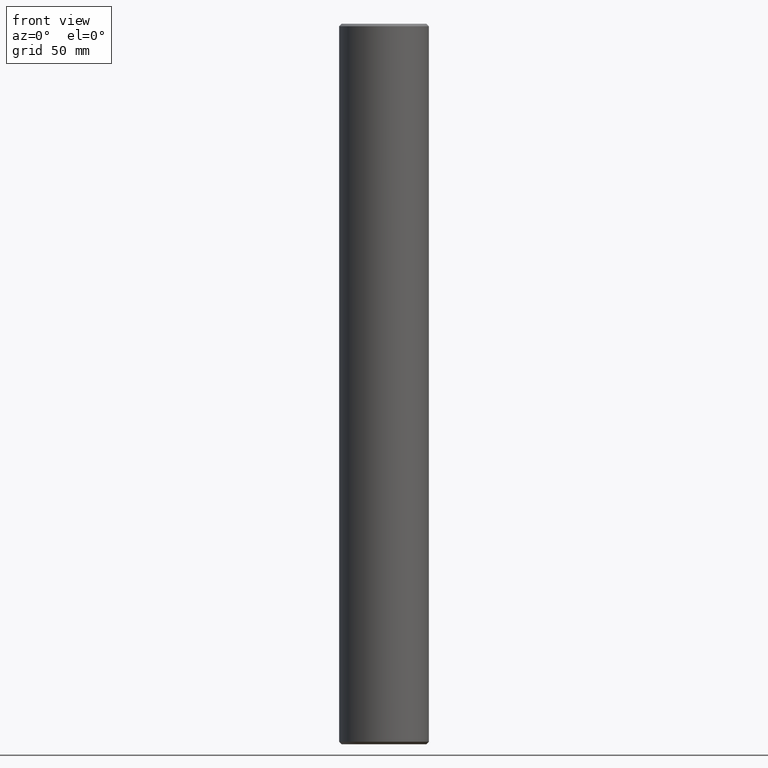
[diagram: clean part render]
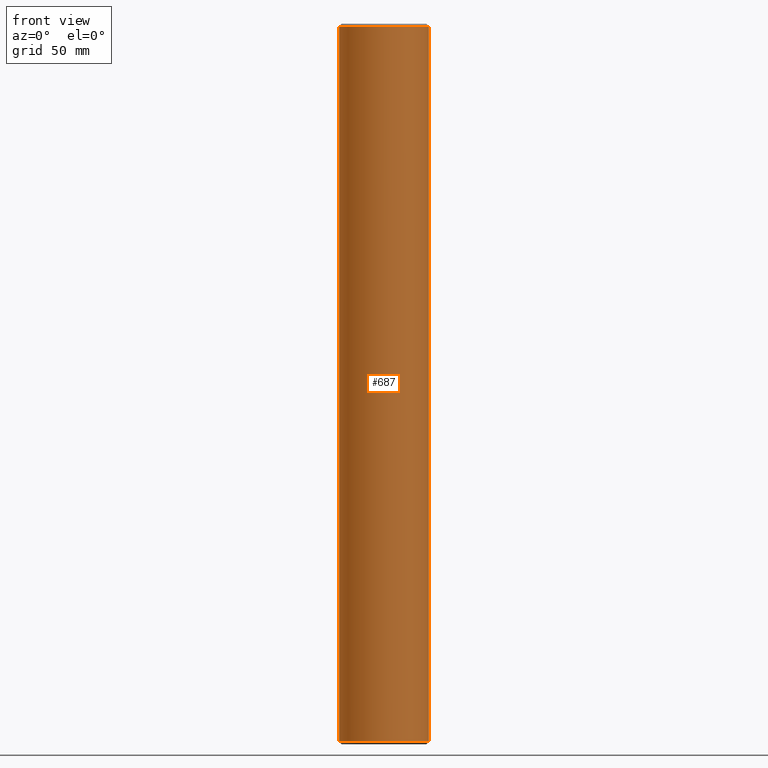
[diagram: same view with one face highlighted and labeled with its STEP entity id]
A machine part, front view. The second image highlights one B-rep face of the part: STEP entity #687.
In plain terms, the highlighted cylindrical surface (partial cylindrical patch) has radius 18.7 mm, axis along (-0, -0, -1).
Its self-contained STEP definition (entity closure, byte-faithful):
#52 = VERTEX_POINT ( 'NONE', #2946 ) ;
#117 = DIRECTION ( 'NONE',  ( 0.0000000000000000000, 0.0000000000000000000, -1.000000000000000000 ) ) ;
#287 = CARTESIAN_POINT ( 'NONE',  ( 18.69999999999999900, 2.290089514405550500E-015, 150.0000000000000000 ) ) ;
#561 = EDGE_CURVE ( 'NONE', #15288, #4018, #3644, .T. ) ;
#687 = ADVANCED_FACE ( 'NONE', ( #9645 ), #6376, .T. ) ;
#1539 = CIRCLE ( 'NONE', #15968, 18.69999999999999900 ) ;
#1906 = DIRECTION ( 'NONE',  ( -0.0000000000000000000, -0.0000000000000000000, -1.000000000000000000 ) ) ;
#2353 = DIRECTION ( 'NONE',  ( -0.0000000000000000000, -0.0000000000000000000, 1.000000000000000000 ) ) ;
#2946 = CARTESIAN_POINT ( 'NONE',  ( -18.69999999999999900, 0.0000000000000000000, 149.0000000000000300 ) ) ;
#3055 = EDGE_LOOP ( 'NONE', ( #11773, #9552, #14431, #11357 ) ) ;
#3136 = CARTESIAN_POINT ( 'NONE',  ( -18.69999999999999900, 0.0000000000000000000, 150.0000000000000000 ) ) ;
#3415 = CARTESIAN_POINT ( 'NONE',  ( 0.0000000000000000000, 0.0000000000000000000, 150.0000000000000000 ) ) ;
#3644 = LINE ( 'NONE', #287, #16121 ) ;
#3795 = CARTESIAN_POINT ( 'NONE',  ( 0.0000000000000000000, 0.0000000000000000000, 149.0000000000000300 ) ) ;
#3972 = VERTEX_POINT ( 'NONE', #8912 ) ;
#4018 = VERTEX_POINT ( 'NONE', #10050 ) ;
#4281 = AXIS2_PLACEMENT_3D ( 'NONE', #6022, #2353, #7273 ) ;
#5418 = EDGE_CURVE ( 'NONE', #3972, #4018, #13964, .T. ) ;
#6022 = CARTESIAN_POINT ( 'NONE',  ( 0.0000000000000000000, 0.0000000000000000000, -148.9999999999998300 ) ) ;
#6027 = EDGE_CURVE ( 'NONE', #15288, #52, #1539, .T. ) ;
#6376 = CYLINDRICAL_SURFACE ( 'NONE', #11177, 18.69999999999999900 ) ;
#7273 = DIRECTION ( 'NONE',  ( 1.000000000000000000, 0.0000000000000000000, 0.0000000000000000000 ) ) ;
#7300 = LINE ( 'NONE', #3136, #10964 ) ;
#7889 = DIRECTION ( 'NONE',  ( -0.0000000000000000000, -0.0000000000000000000, -1.000000000000000000 ) ) ;
#8237 = DIRECTION ( 'NONE',  ( -0.0000000000000000000, -0.0000000000000000000, -1.000000000000000000 ) ) ;
#8912 = CARTESIAN_POINT ( 'NONE',  ( -18.69999999999999900, 0.0000000000000000000, -148.9999999999998300 ) ) ;
#9552 = ORIENTED_EDGE ( 'NONE', *, *, #6027, .T. ) ;
#9645 = FACE_OUTER_BOUND ( 'NONE', #3055, .T. ) ;
#9917 = DIRECTION ( 'NONE',  ( 1.000000000000000000, 0.0000000000000000000, 0.0000000000000000000 ) ) ;
#10050 = CARTESIAN_POINT ( 'NONE',  ( 18.69999999999999900, 2.290089514405550500E-015, -148.9999999999998300 ) ) ;
#10964 = VECTOR ( 'NONE', #1906, 1000.000000000000000 ) ;
#11177 = AXIS2_PLACEMENT_3D ( 'NONE', #3415, #8237, #14653 ) ;
#11357 = ORIENTED_EDGE ( 'NONE', *, *, #5418, .T. ) ;
#11773 = ORIENTED_EDGE ( 'NONE', *, *, #561, .F. ) ;
#12770 = EDGE_CURVE ( 'NONE', #52, #3972, #7300, .T. ) ;
#13964 = CIRCLE ( 'NONE', #4281, 18.69999999999999900 ) ;
#14373 = CARTESIAN_POINT ( 'NONE',  ( 18.69999999999999900, 2.290089514405550500E-015, 149.0000000000000300 ) ) ;
#14431 = ORIENTED_EDGE ( 'NONE', *, *, #12770, .T. ) ;
#14653 = DIRECTION ( 'NONE',  ( -1.000000000000000000, 0.0000000000000000000, 0.0000000000000000000 ) ) ;
#15288 = VERTEX_POINT ( 'NONE', #14373 ) ;
#15968 = AXIS2_PLACEMENT_3D ( 'NONE', #3795, #117, #9917 ) ;
#16121 = VECTOR ( 'NONE', #7889, 1000.000000000000000 ) ;